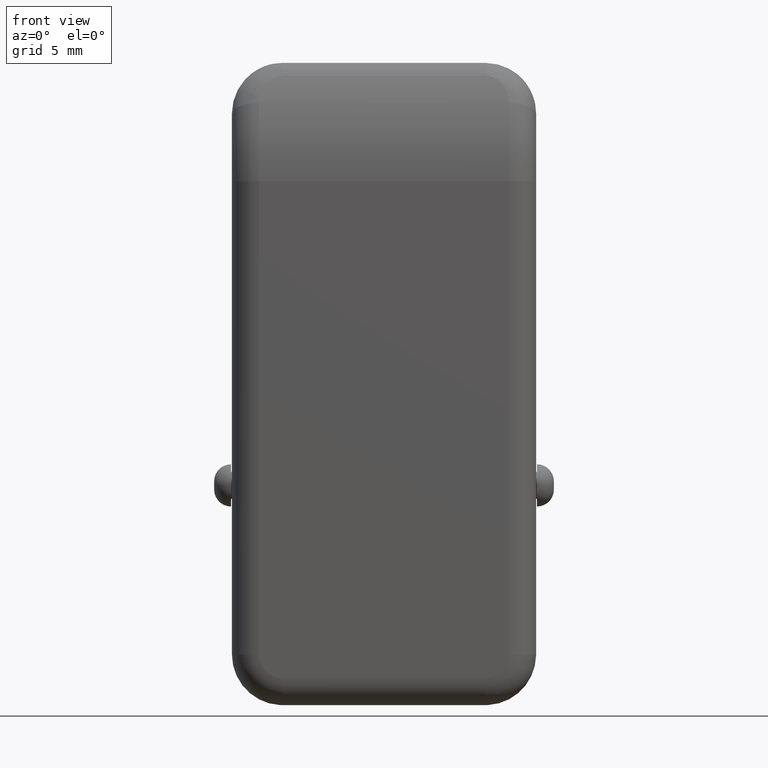
[diagram: clean part render]
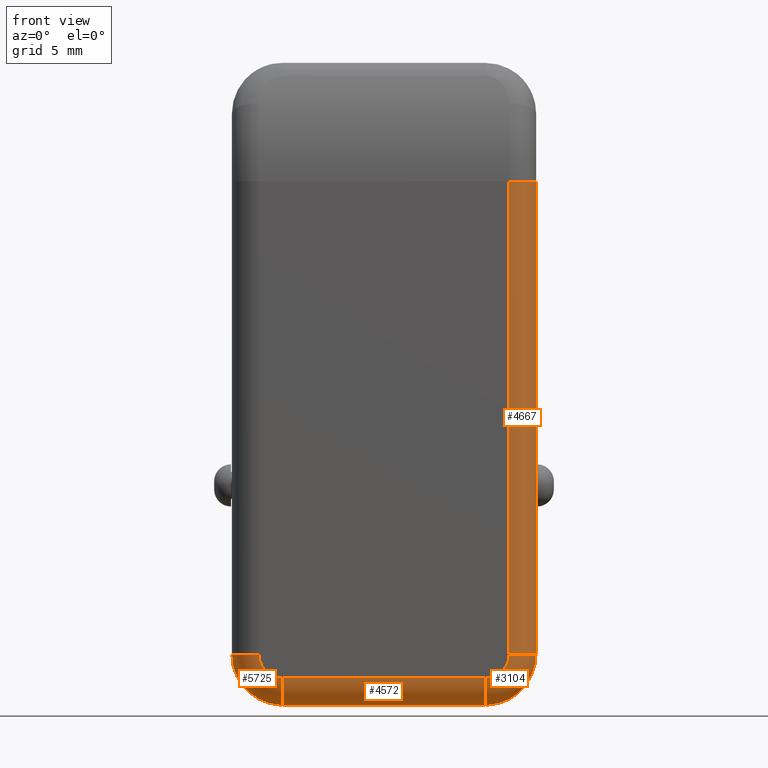
[diagram: same view with one multi-face feature highlighted, each face labeled with its STEP entity id]
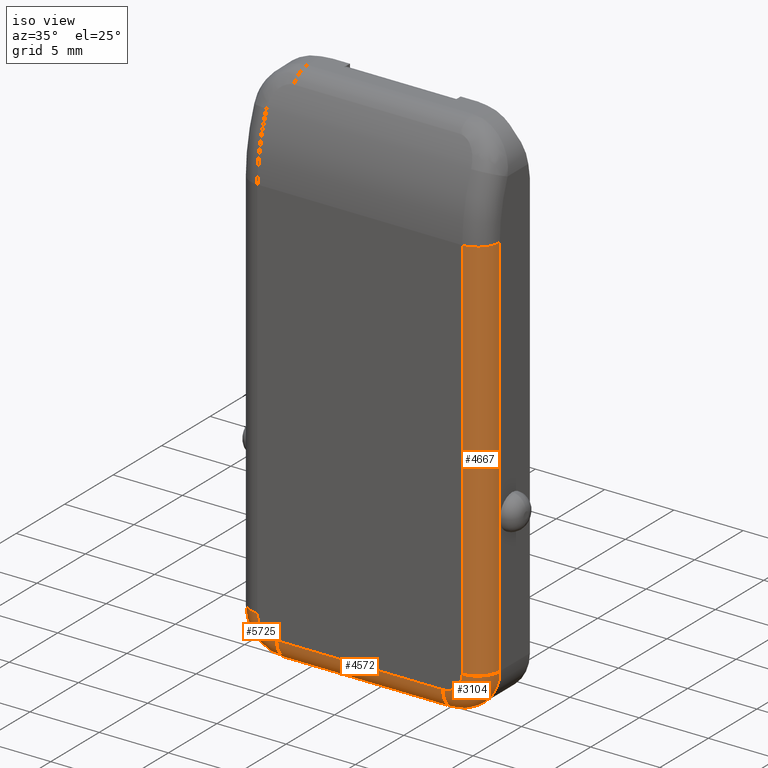
[diagram: same view with one multi-face feature highlighted, each face labeled with its STEP entity id]
A machine part, front view. The highlighted faces form ONE feature: a constant-radius fillet chain: 4 tangent blend faces with common blend radius 1.6 mm. The faces share edges in the B-rep.
A second angle (iso view) of the same feature is appended — it is thin or edge-on in the first view.
Their STEP definitions:
[1] entity #4667 (Cylinder):
#298 = CIRCLE ( 'NONE', #4714, 1.600000000000000800 ) ;
#595 = CARTESIAN_POINT ( 'NONE',  ( 7.400000999999909900, -0.7999907476493990400, -21.49304136415245400 ) ) ;
#598 = ORIENTED_EDGE ( 'NONE', *, *, #2784, .T. ) ;
#616 = VERTEX_POINT ( 'NONE', #1231 ) ;
#1013 = EDGE_CURVE ( 'NONE', #3967, #5796, #4252, .T. ) ;
#1090 = ORIENTED_EDGE ( 'NONE', *, *, #3194, .F. ) ;
#1097 = DIRECTION ( 'NONE',  ( 1.000000000000000000, 0.0000000000000000000, 0.0000000000000000000 ) ) ;
#1231 = CARTESIAN_POINT ( 'NONE',  ( 7.400000999999909900, -2.399990747649400000, -21.49304136415245400 ) ) ;
#1538 = ORIENTED_EDGE ( 'NONE', *, *, #2883, .F. ) ;
#1934 = DIRECTION ( 'NONE',  ( 0.0000000000000000000, 0.0000000000000000000, 1.000000000000000000 ) ) ;
#2301 = VECTOR ( 'NONE', #3721, 1000.000000000000000 ) ;
#2452 = LINE ( 'NONE', #2723, #2301 ) ;
#2723 = CARTESIAN_POINT ( 'NONE',  ( 7.400000999999900100, -2.399990747649400000, 6.506958635846870300 ) ) ;
#2733 = CARTESIAN_POINT ( 'NONE',  ( 7.400000999999900100, -2.399990747649400000, 6.506958635846860500 ) ) ;
#2749 = FACE_OUTER_BOUND ( 'NONE', #3076, .T. ) ;
#2784 = EDGE_CURVE ( 'NONE', #616, #5796, #298, .T. ) ;
#2883 = EDGE_CURVE ( 'NONE', #616, #2954, #2452, .T. ) ;
#2921 = VECTOR ( 'NONE', #3715, 1000.000000000000000 ) ;
#2954 = VERTEX_POINT ( 'NONE', #2733 ) ;
#2956 = DIRECTION ( 'NONE',  ( 1.000000000000000000, 0.0000000000000000000, 0.0000000000000000000 ) ) ;
#3076 = EDGE_LOOP ( 'NONE', ( #598, #4493, #1090, #1538 ) ) ;
#3194 = EDGE_CURVE ( 'NONE', #2954, #3967, #5851, .T. ) ;
#3212 = CARTESIAN_POINT ( 'NONE',  ( 9.000001000000001000, -0.7999907476493990400, -21.49304136415245400 ) ) ;
#3456 = CARTESIAN_POINT ( 'NONE',  ( 7.400000999999900100, -0.7999907476493990400, -22.49304136415245000 ) ) ;
#3574 = CARTESIAN_POINT ( 'NONE',  ( 9.000001000000001000, -0.7999907476493990400, -21.49304136415245400 ) ) ;
#3715 = DIRECTION ( 'NONE',  ( -0.0000000000000000000, -0.0000000000000000000, -1.000000000000000000 ) ) ;
#3721 = DIRECTION ( 'NONE',  ( -0.0000000000000000000, -0.0000000000000000000, 1.000000000000000000 ) ) ;
#3904 = CYLINDRICAL_SURFACE ( 'NONE', #4341, 1.599999999999999900 ) ;
#3967 = VERTEX_POINT ( 'NONE', #4969 ) ;
#4037 = DIRECTION ( 'NONE',  ( 0.0000000000000000000, 0.0000000000000000000, 1.000000000000000000 ) ) ;
#4252 = LINE ( 'NONE', #3212, #2921 ) ;
#4341 = AXIS2_PLACEMENT_3D ( 'NONE', #3456, #4918, #2956 ) ;
#4493 = ORIENTED_EDGE ( 'NONE', *, *, #1013, .F. ) ;
#4667 = ADVANCED_FACE ( 'NONE', ( #2749 ), #3904, .T. ) ;
#4714 = AXIS2_PLACEMENT_3D ( 'NONE', #595, #4037, #1097 ) ;
#4888 = CARTESIAN_POINT ( 'NONE',  ( 7.400000999999900100, -0.7999907476493990400, 6.506958635846860500 ) ) ;
#4918 = DIRECTION ( 'NONE',  ( 0.0000000000000000000, 0.0000000000000000000, 1.000000000000000000 ) ) ;
#4969 = CARTESIAN_POINT ( 'NONE',  ( 9.000001000000001000, -0.7999907476493990400, 6.506958635846860500 ) ) ;
#5385 = DIRECTION ( 'NONE',  ( 1.000000000000000000, 0.0000000000000000000, 0.0000000000000000000 ) ) ;
#5796 = VERTEX_POINT ( 'NONE', #3574 ) ;
#5851 = CIRCLE ( 'NONE', #5907, 1.599999999999999900 ) ;
#5907 = AXIS2_PLACEMENT_3D ( 'NONE', #4888, #1934, #5385 ) ;
[2] entity #3104 (Torus):
#85 = ORIENTED_EDGE ( 'NONE', *, *, #2784, .F. ) ;
#177 = VERTEX_POINT ( 'NONE', #2685 ) ;
#188 = EDGE_CURVE ( 'NONE', #1350, #177, #1088, .T. ) ;
#298 = CIRCLE ( 'NONE', #4714, 1.600000000000000800 ) ;
#396 = DIRECTION ( 'NONE',  ( 0.0000000000000000000, -1.000000000000000000, 0.0000000000000000000 ) ) ;
#423 = CARTESIAN_POINT ( 'NONE',  ( 6.056646567272680100, -0.8087949453041863900, -24.49301714087647900 ) ) ;
#463 = ORIENTED_EDGE ( 'NONE', *, *, #4654, .F. ) ;
#500 = AXIS2_PLACEMENT_3D ( 'NONE', #5320, #396, #5825 ) ;
#595 = CARTESIAN_POINT ( 'NONE',  ( 7.400000999999909900, -0.7999907476493990400, -21.49304136415245400 ) ) ;
#616 = VERTEX_POINT ( 'NONE', #1231 ) ;
#630 = AXIS2_PLACEMENT_3D ( 'NONE', #4103, #1148, #4590 ) ;
#1054 = CIRCLE ( 'NONE', #1198, 1.399999999999998600 ) ;
#1065 = FACE_OUTER_BOUND ( 'NONE', #5876, .T. ) ;
#1088 = B_SPLINE_CURVE_WITH_KNOTS ( 'NONE', 3,
 ( #4055, #423, #1408, #6331 ),
 .UNSPECIFIED., .F., .F.,
 ( 4, 4 ),
 ( 3.014490605399431800E-005, 0.0001998637217180104900 ),
 .UNSPECIFIED. ) ;
#1097 = DIRECTION ( 'NONE',  ( 1.000000000000000000, 0.0000000000000000000, 0.0000000000000000000 ) ) ;
#1148 = DIRECTION ( 'NONE',  ( -1.000000000000000000, -0.0000000000000000000, -0.0000000000000000000 ) ) ;
#1198 = AXIS2_PLACEMENT_3D ( 'NONE', #2008, #5465, #2498 ) ;
#1231 = CARTESIAN_POINT ( 'NONE',  ( 7.400000999999909900, -2.399990747649400000, -21.49304136415245400 ) ) ;
#1314 = EDGE_CURVE ( 'NONE', #1350, #4893, #4477, .T. ) ;
#1325 = ORIENTED_EDGE ( 'NONE', *, *, #188, .T. ) ;
#1350 = VERTEX_POINT ( 'NONE', #6086 ) ;
#1408 = CARTESIAN_POINT ( 'NONE',  ( 6.113123965044343900, -0.8058769899018716200, -24.49143822613266200 ) ) ;
#2008 = CARTESIAN_POINT ( 'NONE',  ( 6.000000999999909500, -2.399990747649400000, -21.49304136415245400 ) ) ;
#2345 = AXIS2_PLACEMENT_3D ( 'NONE', #5416, #2466, #5913 ) ;
#2466 = DIRECTION ( 'NONE',  ( -0.0000000000000000000, 1.000000000000000000, -0.0000000000000000000 ) ) ;
#2498 = DIRECTION ( 'NONE',  ( 0.0000000000000000000, 0.0000000000000000000, -1.000000000000000000 ) ) ;
#2522 = TOROIDAL_SURFACE ( 'NONE', #500, 1.399999999999999900, 1.600000000000000100 ) ;
#2685 = CARTESIAN_POINT ( 'NONE',  ( 6.169430292580979200, -0.7999907476648290300, -24.48825316214195200 ) ) ;
#2784 = EDGE_CURVE ( 'NONE', #616, #5796, #298, .T. ) ;
#3104 = ADVANCED_FACE ( 'NONE', ( #1065 ), #2522, .T. ) ;
#3407 = ORIENTED_EDGE ( 'NONE', *, *, #1314, .F. ) ;
#3574 = CARTESIAN_POINT ( 'NONE',  ( 9.000001000000001000, -0.7999907476493990400, -21.49304136415245400 ) ) ;
#4037 = DIRECTION ( 'NONE',  ( 0.0000000000000000000, 0.0000000000000000000, 1.000000000000000000 ) ) ;
#4055 = CARTESIAN_POINT ( 'NONE',  ( 6.000000999999999300, -0.8087949453042119200, -24.49301714087650000 ) ) ;
#4103 = CARTESIAN_POINT ( 'NONE',  ( 6.000000999999999300, -0.7999907476493990400, -22.89304136415245200 ) ) ;
#4477 = CIRCLE ( 'NONE', #630, 1.600000000000000800 ) ;
#4590 = DIRECTION ( 'NONE',  ( 0.0000000000000000000, 0.0000000000000000000, -1.000000000000000000 ) ) ;
#4654 = EDGE_CURVE ( 'NONE', #5796, #177, #5683, .T. ) ;
#4714 = AXIS2_PLACEMENT_3D ( 'NONE', #595, #4037, #1097 ) ;
#4871 = ORIENTED_EDGE ( 'NONE', *, *, #4958, .F. ) ;
#4893 = VERTEX_POINT ( 'NONE', #5882 ) ;
#4958 = EDGE_CURVE ( 'NONE', #4893, #616, #1054, .T. ) ;
#5320 = CARTESIAN_POINT ( 'NONE',  ( 6.000000999999909500, -0.7999907476493990400, -21.49304136415245400 ) ) ;
#5416 = CARTESIAN_POINT ( 'NONE',  ( 6.000000999999909500, -0.7999907476493990400, -21.49304136415245400 ) ) ;
#5465 = DIRECTION ( 'NONE',  ( 0.0000000000000000000, -1.000000000000000000, 0.0000000000000000000 ) ) ;
#5683 = CIRCLE ( 'NONE', #2345, 2.999999999999999100 ) ;
#5796 = VERTEX_POINT ( 'NONE', #3574 ) ;
#5825 = DIRECTION ( 'NONE',  ( 0.0000000000000000000, 0.0000000000000000000, -1.000000000000000000 ) ) ;
#5876 = EDGE_LOOP ( 'NONE', ( #3407, #1325, #463, #85, #4871 ) ) ;
#5882 = CARTESIAN_POINT ( 'NONE',  ( 6.000000999999999300, -2.399990747649400000, -22.89304136415245200 ) ) ;
#5913 = DIRECTION ( 'NONE',  ( 0.0000000000000000000, 0.0000000000000000000, -1.000000000000000000 ) ) ;
#6086 = CARTESIAN_POINT ( 'NONE',  ( 6.000000999999999300, -0.8087949453042119200, -24.49301714087650000 ) ) ;
#6331 = CARTESIAN_POINT ( 'NONE',  ( 6.169430292580979200, -0.7999907476648290300, -24.48825316214195200 ) ) ;
[3] entity #4572 (Cylinder):
#35 = AXIS2_PLACEMENT_3D ( 'NONE', #5219, #3261, #2744 ) ;
#52 = VERTEX_POINT ( 'NONE', #805 ) ;
#312 = CIRCLE ( 'NONE', #3056, 1.600000000000000800 ) ;
#323 = EDGE_LOOP ( 'NONE', ( #5793, #1144, #5838, #4818, #4396, #6285 ) ) ;
#590 = CYLINDRICAL_SURFACE ( 'NONE', #35, 1.600000000000000800 ) ;
#630 = AXIS2_PLACEMENT_3D ( 'NONE', #4103, #1148, #4590 ) ;
#805 = CARTESIAN_POINT ( 'NONE',  ( -6.000001000000089800, -0.8087949453042119200, -24.49301714087650000 ) ) ;
#1058 = EDGE_CURVE ( 'NONE', #5440, #52, #312, .T. ) ;
#1107 = CARTESIAN_POINT ( 'NONE',  ( -6.000001000000119200, -0.7999907476493990400, -22.89304136415245200 ) ) ;
#1144 = ORIENTED_EDGE ( 'NONE', *, *, #6370, .T. ) ;
#1148 = DIRECTION ( 'NONE',  ( -1.000000000000000000, -0.0000000000000000000, -0.0000000000000000000 ) ) ;
#1314 = EDGE_CURVE ( 'NONE', #1350, #4893, #4477, .T. ) ;
#1350 = VERTEX_POINT ( 'NONE', #6086 ) ;
#1610 = DIRECTION ( 'NONE',  ( 0.0000000000000000000, 0.0000000000000000000, -1.000000000000000000 ) ) ;
#1883 = VECTOR ( 'NONE', #5109, 1000.000000000000000 ) ;
#2033 = LINE ( 'NONE', #4626, #1883 ) ;
#2066 = VERTEX_POINT ( 'NONE', #4200 ) ;
#2160 = DIRECTION ( 'NONE',  ( 1.000000000000000000, -0.0000000000000000000, -0.0000000000000000000 ) ) ;
#2300 = CARTESIAN_POINT ( 'NONE',  ( -6.000001000000089800, -0.7999907476493990400, -22.89304136415245200 ) ) ;
#2458 = CARTESIAN_POINT ( 'NONE',  ( -6.000001000000089800, -0.7999907476493990400, -24.49304136415245000 ) ) ;
#2575 = VECTOR ( 'NONE', #2160, 1000.000000000000000 ) ;
#2674 = AXIS2_PLACEMENT_3D ( 'NONE', #2805, #6265, #3305 ) ;
#2744 = DIRECTION ( 'NONE',  ( 0.0000000000000000000, 0.0000000000000000000, -1.000000000000000000 ) ) ;
#2796 = DIRECTION ( 'NONE',  ( 0.0000000000000000000, 2.540421215405096600E-013, 1.000000000000000000 ) ) ;
#2805 = CARTESIAN_POINT ( 'NONE',  ( 6.000000999999999300, -0.7999907476493990400, -22.89304136415245200 ) ) ;
#3056 = AXIS2_PLACEMENT_3D ( 'NONE', #1107, #4564, #1610 ) ;
#3261 = DIRECTION ( 'NONE',  ( 1.000000000000000000, 0.0000000000000000000, 0.0000000000000000000 ) ) ;
#3305 = DIRECTION ( 'NONE',  ( 0.0000000000000000000, 0.0000000000000000000, -1.000000000000000000 ) ) ;
#3656 = CARTESIAN_POINT ( 'NONE',  ( 9.000001000000001000, -2.399990747649400000, -22.89304136415245200 ) ) ;
#3896 = VERTEX_POINT ( 'NONE', #2458 ) ;
#4103 = CARTESIAN_POINT ( 'NONE',  ( 6.000000999999999300, -0.7999907476493990400, -22.89304136415245200 ) ) ;
#4200 = CARTESIAN_POINT ( 'NONE',  ( 6.000000999999909500, -0.7999907476476710900, -24.49304136415245000 ) ) ;
#4235 = CARTESIAN_POINT ( 'NONE',  ( -6.000001000000119200, -2.399990747649400000, -22.89304136415245200 ) ) ;
#4396 = ORIENTED_EDGE ( 'NONE', *, *, #1058, .T. ) ;
#4477 = CIRCLE ( 'NONE', #630, 1.600000000000000800 ) ;
#4533 = FACE_OUTER_BOUND ( 'NONE', #323, .T. ) ;
#4564 = DIRECTION ( 'NONE',  ( 1.000000000000000000, 0.0000000000000000000, 0.0000000000000000000 ) ) ;
#4572 = ADVANCED_FACE ( 'NONE', ( #4533 ), #590, .T. ) ;
#4590 = DIRECTION ( 'NONE',  ( 0.0000000000000000000, 0.0000000000000000000, -1.000000000000000000 ) ) ;
#4626 = CARTESIAN_POINT ( 'NONE',  ( -9.000001000000130700, -0.7999907476493990400, -24.49304136415245000 ) ) ;
#4818 = ORIENTED_EDGE ( 'NONE', *, *, #5169, .F. ) ;
#4893 = VERTEX_POINT ( 'NONE', #5882 ) ;
#5109 = DIRECTION ( 'NONE',  ( -1.000000000000000000, -0.0000000000000000000, -0.0000000000000000000 ) ) ;
#5169 = EDGE_CURVE ( 'NONE', #5440, #4893, #5200, .T. ) ;
#5200 = LINE ( 'NONE', #3656, #2575 ) ;
#5219 = CARTESIAN_POINT ( 'NONE',  ( 990.9999990000000000, -0.7999907476493990400, -22.89304136415245200 ) ) ;
#5271 = CIRCLE ( 'NONE', #5660, 1.600000000000000800 ) ;
#5440 = VERTEX_POINT ( 'NONE', #4235 ) ;
#5660 = AXIS2_PLACEMENT_3D ( 'NONE', #2300, #5754, #2796 ) ;
#5754 = DIRECTION ( 'NONE',  ( 1.000000000000000000, -0.0000000000000000000, 1.224646799147352000E-016 ) ) ;
#5793 = ORIENTED_EDGE ( 'NONE', *, *, #6182, .F. ) ;
#5838 = ORIENTED_EDGE ( 'NONE', *, *, #1314, .T. ) ;
#5882 = CARTESIAN_POINT ( 'NONE',  ( 6.000000999999999300, -2.399990747649400000, -22.89304136415245200 ) ) ;
#6052 = EDGE_CURVE ( 'NONE', #52, #3896, #5271, .T. ) ;
#6053 = CIRCLE ( 'NONE', #2674, 1.600000000000000800 ) ;
#6086 = CARTESIAN_POINT ( 'NONE',  ( 6.000000999999999300, -0.8087949453042119200, -24.49301714087650000 ) ) ;
#6182 = EDGE_CURVE ( 'NONE', #2066, #3896, #2033, .T. ) ;
#6265 = DIRECTION ( 'NONE',  ( -1.000000000000000000, -0.0000000000000000000, -0.0000000000000000000 ) ) ;
#6285 = ORIENTED_EDGE ( 'NONE', *, *, #6052, .T. ) ;
#6370 = EDGE_CURVE ( 'NONE', #2066, #1350, #6053, .T. ) ;
[4] entity #5725 (Torus):
#34 = DIRECTION ( 'NONE',  ( -0.0000000000000000000, 1.000000000000000000, -0.0000000000000000000 ) ) ;
#52 = VERTEX_POINT ( 'NONE', #805 ) ;
#67 = AXIS2_PLACEMENT_3D ( 'NONE', #351, #3334, #6295 ) ;
#118 = EDGE_CURVE ( 'NONE', #3203, #1942, #4534, .T. ) ;
#174 = CARTESIAN_POINT ( 'NONE',  ( -6.000001000000089800, -2.399990747649400000, -21.49304136415245400 ) ) ;
#312 = CIRCLE ( 'NONE', #3056, 1.600000000000000800 ) ;
#351 = CARTESIAN_POINT ( 'NONE',  ( -7.400001000000090200, -0.7999907476493990400, -21.49304136415245400 ) ) ;
#663 = DIRECTION ( 'NONE',  ( 0.0000000000000000000, 0.0000000000000000000, -1.000000000000000000 ) ) ;
#686 = CARTESIAN_POINT ( 'NONE',  ( -9.000001000000001000, -0.7999907476493990400, -21.49304136415245400 ) ) ;
#805 = CARTESIAN_POINT ( 'NONE',  ( -6.000001000000089800, -0.8087949453042119200, -24.49301714087650000 ) ) ;
#932 = EDGE_LOOP ( 'NONE', ( #1618, #1807, #5690, #4875, #5404 ) ) ;
#991 = DIRECTION ( 'NONE',  ( 0.0000000000000000000, -1.000000000000000000, 0.0000000000000000000 ) ) ;
#1058 = EDGE_CURVE ( 'NONE', #5440, #52, #312, .T. ) ;
#1107 = CARTESIAN_POINT ( 'NONE',  ( -6.000001000000119200, -0.7999907476493990400, -22.89304136415245200 ) ) ;
#1179 = CARTESIAN_POINT ( 'NONE',  ( -6.113123964832948500, -0.8058769899240282300, -24.49143822614462700 ) ) ;
#1485 = DIRECTION ( 'NONE',  ( 0.0000000000000000000, 0.0000000000000000000, -1.000000000000000000 ) ) ;
#1610 = DIRECTION ( 'NONE',  ( 0.0000000000000000000, 0.0000000000000000000, -1.000000000000000000 ) ) ;
#1618 = ORIENTED_EDGE ( 'NONE', *, *, #3654, .F. ) ;
#1677 = CARTESIAN_POINT ( 'NONE',  ( -6.000001000000089800, -0.8087949453042119200, -24.49301714087650000 ) ) ;
#1807 = ORIENTED_EDGE ( 'NONE', *, *, #1943, .T. ) ;
#1942 = VERTEX_POINT ( 'NONE', #686 ) ;
#1943 = EDGE_CURVE ( 'NONE', #5154, #52, #5875, .T. ) ;
#2088 = AXIS2_PLACEMENT_3D ( 'NONE', #174, #3631, #663 ) ;
#2151 = AXIS2_PLACEMENT_3D ( 'NONE', #3939, #991, #1485 ) ;
#2987 = CARTESIAN_POINT ( 'NONE',  ( -6.000001000000089800, -0.7999907476493990400, -21.49304136415245400 ) ) ;
#3056 = AXIS2_PLACEMENT_3D ( 'NONE', #1107, #4564, #1610 ) ;
#3203 = VERTEX_POINT ( 'NONE', #3894 ) ;
#3334 = DIRECTION ( 'NONE',  ( 0.0000000000000000000, 0.0000000000000000000, -1.000000000000000000 ) ) ;
#3335 = EDGE_CURVE ( 'NONE', #3203, #5440, #4909, .T. ) ;
#3367 = CIRCLE ( 'NONE', #4944, 2.999999999999999100 ) ;
#3482 = DIRECTION ( 'NONE',  ( 0.0000000000000000000, 0.0000000000000000000, -1.000000000000000000 ) ) ;
#3631 = DIRECTION ( 'NONE',  ( 0.0000000000000000000, -1.000000000000000000, 0.0000000000000000000 ) ) ;
#3654 = EDGE_CURVE ( 'NONE', #5154, #1942, #3367, .T. ) ;
#3894 = CARTESIAN_POINT ( 'NONE',  ( -7.400001000000090200, -2.399990747649400000, -21.49304136415245400 ) ) ;
#3939 = CARTESIAN_POINT ( 'NONE',  ( -6.000001000000089800, -0.7999907476493990400, -21.49304136415245400 ) ) ;
#4130 = CARTESIAN_POINT ( 'NONE',  ( -6.169430292581109800, -0.7999907476648360200, -24.48825316214195200 ) ) ;
#4235 = CARTESIAN_POINT ( 'NONE',  ( -6.000001000000119200, -2.399990747649400000, -22.89304136415245200 ) ) ;
#4366 = FACE_OUTER_BOUND ( 'NONE', #932, .T. ) ;
#4534 = CIRCLE ( 'NONE', #67, 1.600000000000000800 ) ;
#4564 = DIRECTION ( 'NONE',  ( 1.000000000000000000, 0.0000000000000000000, 0.0000000000000000000 ) ) ;
#4630 = CARTESIAN_POINT ( 'NONE',  ( -6.056646567061207500, -0.8087949453042293500, -24.49301714087647900 ) ) ;
#4875 = ORIENTED_EDGE ( 'NONE', *, *, #3335, .F. ) ;
#4909 = CIRCLE ( 'NONE', #2088, 1.399999999999998600 ) ;
#4944 = AXIS2_PLACEMENT_3D ( 'NONE', #2987, #34, #3482 ) ;
#5154 = VERTEX_POINT ( 'NONE', #5613 ) ;
#5404 = ORIENTED_EDGE ( 'NONE', *, *, #118, .T. ) ;
#5440 = VERTEX_POINT ( 'NONE', #4235 ) ;
#5613 = CARTESIAN_POINT ( 'NONE',  ( -6.169430292581109800, -0.7999907476648360200, -24.48825316214195200 ) ) ;
#5670 = TOROIDAL_SURFACE ( 'NONE', #2151, 1.399999999999999900, 1.600000000000000100 ) ;
#5690 = ORIENTED_EDGE ( 'NONE', *, *, #1058, .F. ) ;
#5725 = ADVANCED_FACE ( 'NONE', ( #4366 ), #5670, .T. ) ;
#5875 = B_SPLINE_CURVE_WITH_KNOTS ( 'NONE', 3,
 ( #4130, #1179, #4630, #1677 ),
 .UNSPECIFIED., .F., .F.,
 ( 4, 4 ),
 ( 6.064604255268114100E-006, 0.0001757834198294755400 ),
 .UNSPECIFIED. ) ;
#6295 = DIRECTION ( 'NONE',  ( -1.000000000000000000, 0.0000000000000000000, 0.0000000000000000000 ) ) ;